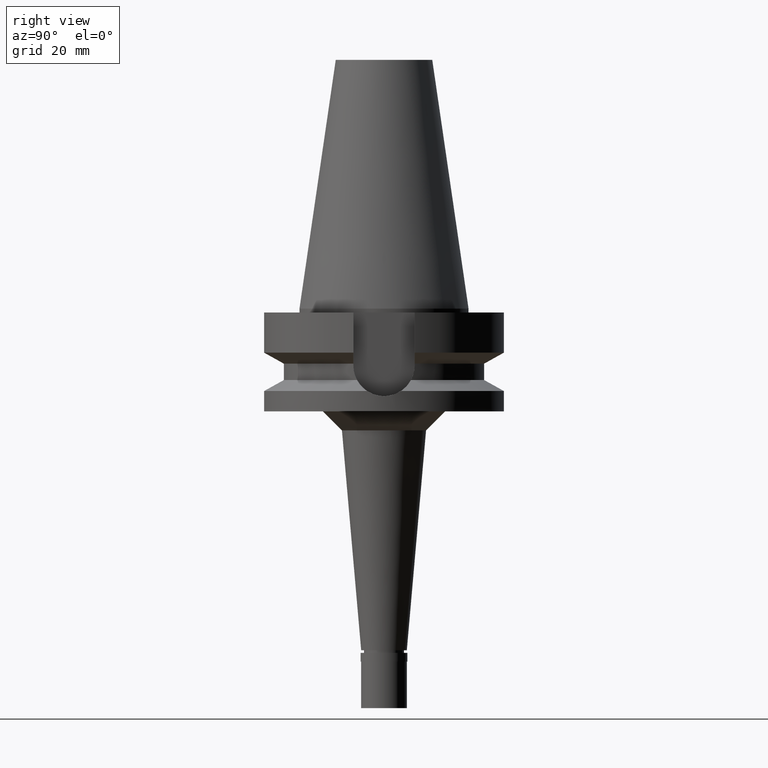
[diagram: clean part render]
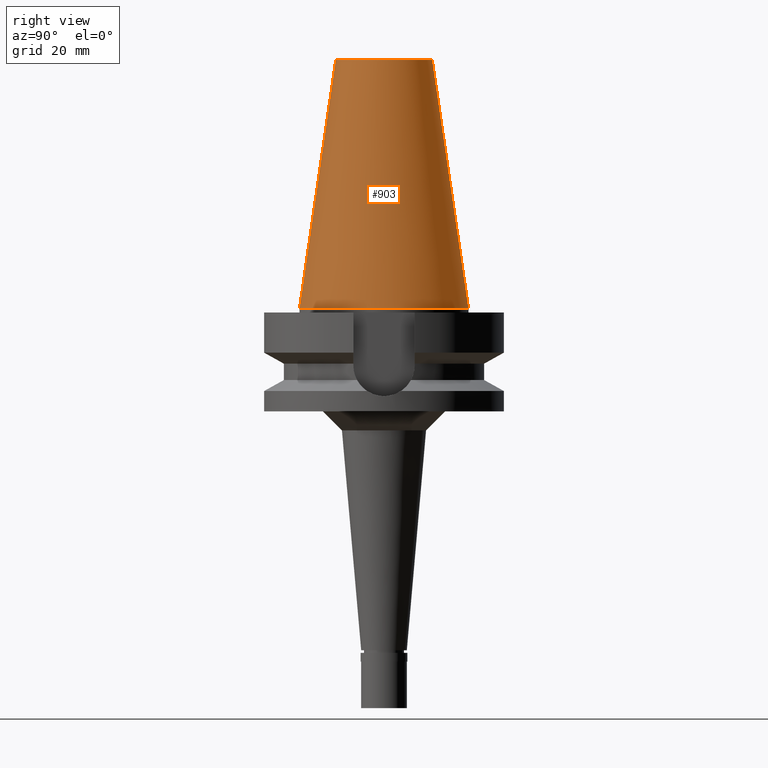
[diagram: same view with one face highlighted and labeled with its STEP entity id]
A machine part, right view. The second image highlights one B-rep face of the part: STEP entity #903.
In plain terms, the highlighted conical surface has half-angle 8.297 deg.
Its self-contained STEP definition (entity closure, byte-faithful):
#46 = EDGE_CURVE ( 'NONE', #1921, #1963, #994, .T. ) ;
#201 = ORIENTED_EDGE ( 'NONE', *, *, #2417, .F. ) ;
#260 = CARTESIAN_POINT ( 'NONE',  ( 0.0000000000000000000, 12.68766899429999917, 65.40000000000000568 ) ) ;
#306 = CARTESIAN_POINT ( 'NONE',  ( 0.0000000000000000000, 1.625106302469000024E-14, 65.40000000000000568 ) ) ;
#324 = EDGE_CURVE ( 'NONE', #1921, #434, #699, .T. ) ;
#434 = VERTEX_POINT ( 'NONE', #598 ) ;
#452 = DIRECTION ( 'NONE',  ( 0.0000000000000000000, -0.1443043893539925626, -0.9895333461855498891 ) ) ;
#490 = DIRECTION ( 'NONE',  ( 0.0000000000000000000, 1.000000000000000000, 0.0000000000000000000 ) ) ;
#497 = EDGE_CURVE ( 'NONE', #1963, #2721, #678, .T. ) ;
#512 = CARTESIAN_POINT ( 'NONE',  ( 0.0000000000000000000, 12.68766899429999917, 65.40000000000000568 ) ) ;
#557 = CARTESIAN_POINT ( 'NONE',  ( 0.0000000000000000000, 1.625106302469000024E-14, 2.842170943039999687E-14 ) ) ;
#598 = CARTESIAN_POINT ( 'NONE',  ( 0.0000000000000000000, 22.22500000000000142, 1.065814103639999827E-13 ) ) ;
#678 = LINE ( 'NONE', #2540, #1576 ) ;
#699 = LINE ( 'NONE', #260, #807 ) ;
#713 = ORIENTED_EDGE ( 'NONE', *, *, #324, .F. ) ;
#801 = CARTESIAN_POINT ( 'NONE',  ( 0.0000000000000000000, 1.625106302469000024E-14, 32.70000000000000284 ) ) ;
#807 = VECTOR ( 'NONE', #1143, 1000.000000000000114 ) ;
#815 = DIRECTION ( 'NONE',  ( 0.0000000000000000000, 0.0000000000000000000, -1.000000000000000000 ) ) ;
#828 = AXIS2_PLACEMENT_3D ( 'NONE', #557, #815, #2411 ) ;
#853 = AXIS2_PLACEMENT_3D ( 'NONE', #801, #1727, #1488 ) ;
#903 = ADVANCED_FACE ( 'NONE', ( #1956 ), #1930, .T. ) ;
#942 = CARTESIAN_POINT ( 'NONE',  ( 0.0000000000000000000, -22.22500000000000142, 1.065814103639999827E-13 ) ) ;
#994 = CIRCLE ( 'NONE', #2890, 12.68766899429999917 ) ;
#1143 = DIRECTION ( 'NONE',  ( 0.0000000000000000000, 0.1443043893539925626, -0.9895333461855498891 ) ) ;
#1194 = DIRECTION ( 'NONE',  ( 0.0000000000000000000, 0.0000000000000000000, -1.000000000000000000 ) ) ;
#1362 = CARTESIAN_POINT ( 'NONE',  ( 0.0000000000000000000, -12.68766899429999917, 65.40000000000000568 ) ) ;
#1488 = DIRECTION ( 'NONE',  ( 0.0000000000000000000, -1.000000000000000000, 0.0000000000000000000 ) ) ;
#1503 = CIRCLE ( 'NONE', #828, 22.22500000000000142 ) ;
#1576 = VECTOR ( 'NONE', #452, 1000.000000000000114 ) ;
#1727 = DIRECTION ( 'NONE',  ( 0.0000000000000000000, 0.0000000000000000000, -1.000000000000000000 ) ) ;
#1921 = VERTEX_POINT ( 'NONE', #512 ) ;
#1930 = CONICAL_SURFACE ( 'NONE', #853, 17.45633449714999941, 0.1448099680379422438 ) ;
#1956 = FACE_OUTER_BOUND ( 'NONE', #2975, .T. ) ;
#1963 = VERTEX_POINT ( 'NONE', #1362 ) ;
#2411 = DIRECTION ( 'NONE',  ( 0.0000000000000000000, 1.000000000000000000, 0.0000000000000000000 ) ) ;
#2417 = EDGE_CURVE ( 'NONE', #434, #2721, #1503, .T. ) ;
#2540 = CARTESIAN_POINT ( 'NONE',  ( 0.0000000000000000000, -12.68766899429999917, 65.40000000000000568 ) ) ;
#2610 = ORIENTED_EDGE ( 'NONE', *, *, #497, .T. ) ;
#2721 = VERTEX_POINT ( 'NONE', #942 ) ;
#2829 = ORIENTED_EDGE ( 'NONE', *, *, #46, .T. ) ;
#2890 = AXIS2_PLACEMENT_3D ( 'NONE', #306, #1194, #490 ) ;
#2975 = EDGE_LOOP ( 'NONE', ( #2829, #2610, #201, #713 ) ) ;